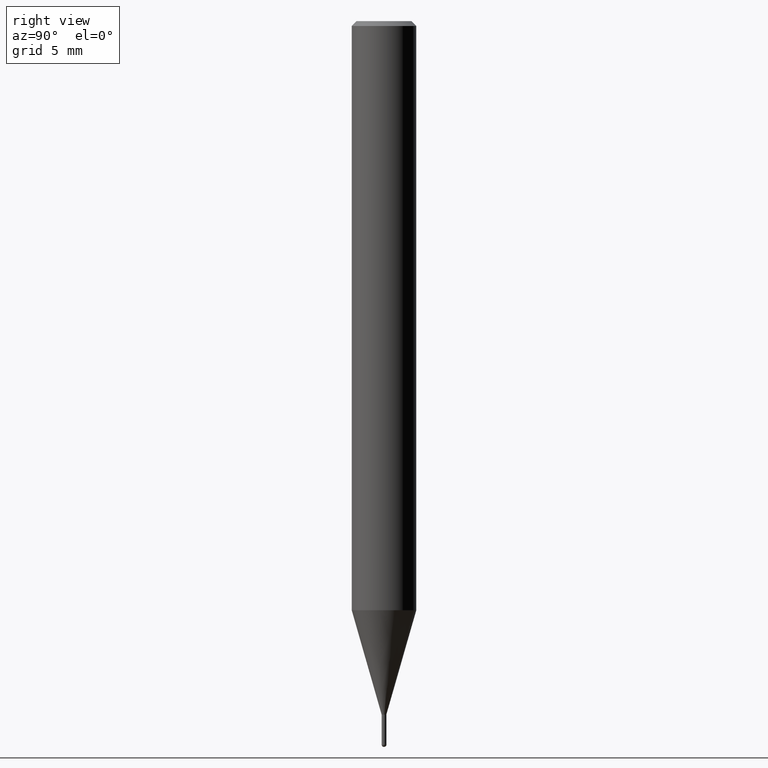
[diagram: clean part render]
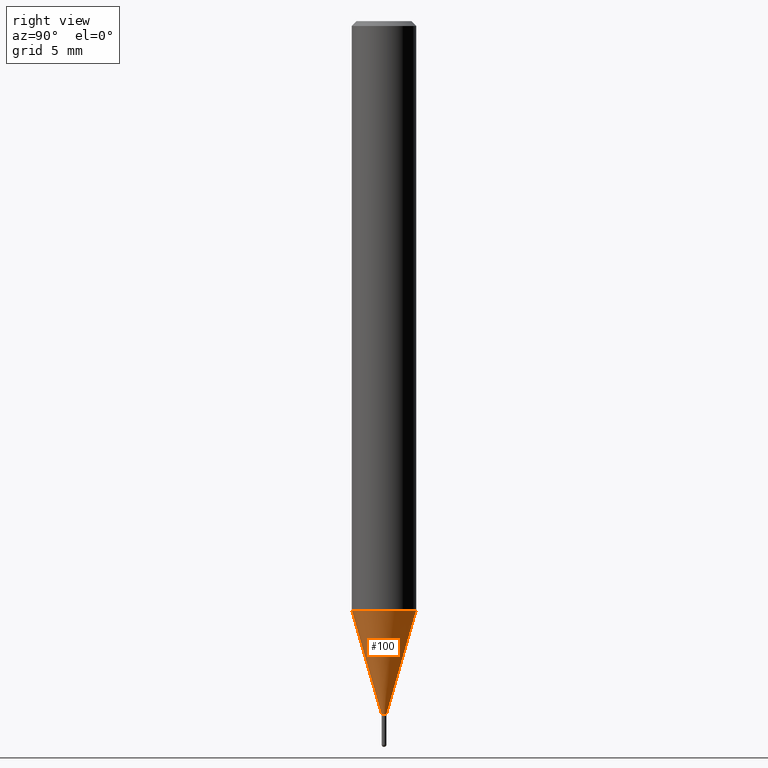
[diagram: same view with one face highlighted and labeled with its STEP entity id]
A machine part, right view. The second image highlights one B-rep face of the part: STEP entity #100.
In plain terms, the highlighted conical surface has half-angle 16 deg.
Its self-contained STEP definition (entity closure, byte-faithful):
#94=VERTEX_POINT('',#235);
#100=ADVANCED_FACE('',(#242),#243,.T.);
#136=EDGE_CURVE('',#162,#94,#284,.T.);
#160=VERTEX_POINT('',#309);
#162=VERTEX_POINT('',#311);
#166=EDGE_CURVE('',#172,#160,#315,.T.);
#172=VERTEX_POINT('',#321);
#176=EDGE_CURVE('',#172,#94,#325,.T.);
#204=EDGE_CURVE('',#160,#162,#360,.T.);
#235=CARTESIAN_POINT('',(2.44915147732706E-016,-1.99995,-36.531));
#242=FACE_OUTER_BOUND('',#394,.T.);
#243=CONICAL_SURFACE('',#395,1.07245,0.279258979430112);
#284=LINE('',#446,#447);
#309=CARTESIAN_POINT('',(0.0,0.14495,-43.0));
#311=CARTESIAN_POINT('',(1.77506690986554E-017,-0.14495,-43.0));
#315=LINE('',#488,#489);
#321=CARTESIAN_POINT('',(0.0,1.99995,-36.531));
#325=CIRCLE('',#502,1.99995);
#360=CIRCLE('',#541,0.14495);
#394=EDGE_LOOP('',(#567,#568,#569,#570));
#395=AXIS2_PLACEMENT_3D('',#571,#572,#573);
#446=CARTESIAN_POINT('',(1.31332908415681E-016,-1.07245,-39.7655));
#447=VECTOR('',#625,1.0);
#488=CARTESIAN_POINT('',(-1.31332908415681E-016,1.07245,-39.7655));
#489=VECTOR('',#648,1.0);
#502=AXIS2_PLACEMENT_3D('',#655,#656,#657);
#541=AXIS2_PLACEMENT_3D('',#716,#717,#718);
#567=ORIENTED_EDGE('',*,*,#166,.F.);
#568=ORIENTED_EDGE('',*,*,#176,.T.);
#569=ORIENTED_EDGE('',*,*,#136,.F.);
#570=ORIENTED_EDGE('',*,*,#204,.F.);
#571=CARTESIAN_POINT('',(0.0,0.0,-39.7655));
#572=DIRECTION('',(-0.0,-0.0,1.0));
#573=DIRECTION('',(0.0,1.0,0.0));
#625=DIRECTION('',(3.37554672384358E-017,-0.275643410905672,0.961259959648943));
#648=DIRECTION('',(3.37554672384358E-017,-0.275643410905672,-0.961259959648943));
#655=CARTESIAN_POINT('',(0.0,0.0,-36.531));
#656=DIRECTION('',(0.0,0.0,-1.0));
#657=DIRECTION('',(0.0,1.0,0.0));
#716=CARTESIAN_POINT('',(0.0,0.0,-43.0));
#717=DIRECTION('',(0.0,0.0,-1.0));
#718=DIRECTION('',(0.0,1.0,0.0));